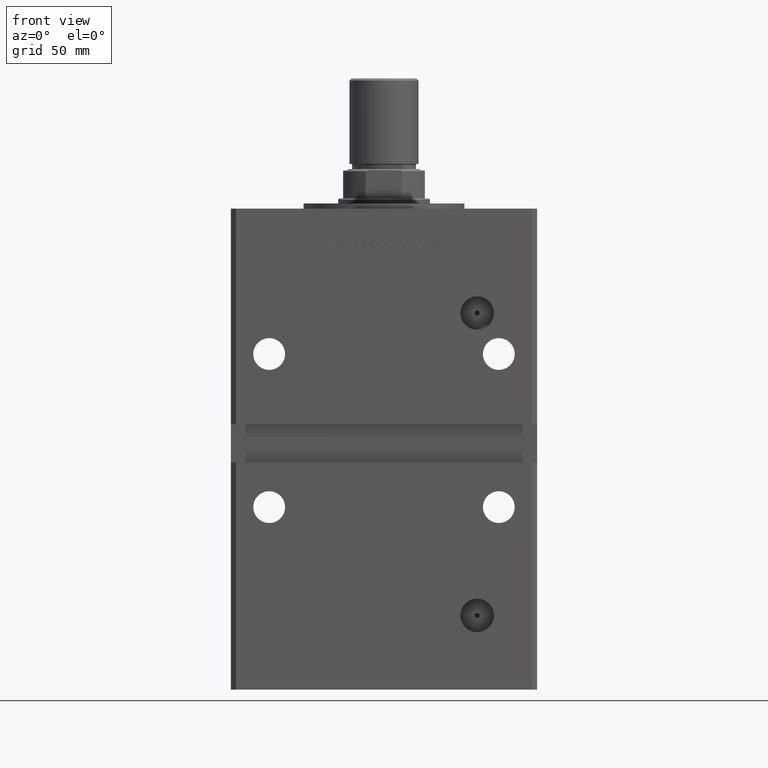
[diagram: clean part render]
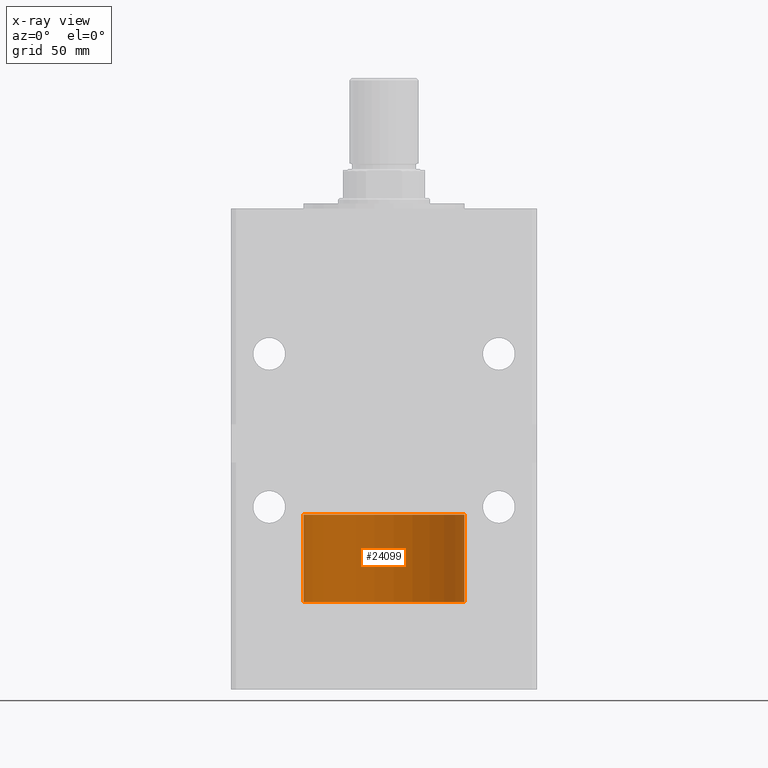
[diagram: x-ray — body ghosted, one internal face saturated and labeled with its STEP entity id]
A machine part, front view, then the same camera in x-ray: the body is ghosted and one INTERNAL B-rep face — a face not visible from any outside direction — is saturated and labeled: STEP entity #24099.
In plain terms, the highlighted cylindrical surface (partial cylindrical patch) has radius 31.5 mm, axis along (-0, -0, -1).
Its self-contained STEP definition (entity closure, byte-faithful):
#867 = VERTEX_POINT ( 'NONE', #34098 ) ;
#1110 = DIRECTION ( 'NONE',  ( -0.000000000000000000, -0.000000000000000000, -1.000000000000000000 ) ) ;
#3923 = CARTESIAN_POINT ( 'NONE',  ( 0.000000000000000000, 0.000000000000000000, 34.25000000000000000 ) ) ;
#4384 = AXIS2_PLACEMENT_3D ( 'NONE', #46930, #39616, #19064 ) ;
#5448 = VECTOR ( 'NONE', #1110, 1000.000000000000000 ) ;
#7257 = EDGE_CURVE ( 'NONE', #15587, #32815, #20708, .T. ) ;
#12291 = AXIS2_PLACEMENT_3D ( 'NONE', #3923, #48560, #28038 ) ;
#12382 = ORIENTED_EDGE ( 'NONE', *, *, #7257, .F. ) ;
#15129 = DIRECTION ( 'NONE',  ( 1.000000000000000000, 0.000000000000000000, 0.000000000000000000 ) ) ;
#15587 = VERTEX_POINT ( 'NONE', #49163 ) ;
#17081 = CARTESIAN_POINT ( 'NONE',  ( 31.50000000000000000, 3.857637417314162689E-15, 34.25000000000000000 ) ) ;
#19064 = DIRECTION ( 'NONE',  ( 1.000000000000000000, 0.000000000000000000, 0.000000000000000000 ) ) ;
#20708 = LINE ( 'NONE', #37215, #24956 ) ;
#22562 = ORIENTED_EDGE ( 'NONE', *, *, #51177, .T. ) ;
#22693 = CARTESIAN_POINT ( 'NONE',  ( 0.000000000000000000, 0.000000000000000000, 0.000000000000000000 ) ) ;
#24099 = ADVANCED_FACE ( 'NONE', ( #32354 ), #27767, .T. ) ;
#24956 = VECTOR ( 'NONE', #33418, 1000.000000000000000 ) ;
#26645 = EDGE_CURVE ( 'NONE', #867, #45069, #29546, .T. ) ;
#27767 = CYLINDRICAL_SURFACE ( 'NONE', #12291, 31.50000000000000000 ) ;
#27913 = ORIENTED_EDGE ( 'NONE', *, *, #26645, .T. ) ;
#28038 = DIRECTION ( 'NONE',  ( -1.000000000000000000, 0.000000000000000000, 0.000000000000000000 ) ) ;
#28593 = CIRCLE ( 'NONE', #34596, 31.50000000000000000 ) ;
#29546 = LINE ( 'NONE', #17081, #5448 ) ;
#30312 = CIRCLE ( 'NONE', #4384, 31.50000000000000000 ) ;
#32354 = FACE_OUTER_BOUND ( 'NONE', #44051, .T. ) ;
#32815 = VERTEX_POINT ( 'NONE', #41215 ) ;
#33418 = DIRECTION ( 'NONE',  ( -0.000000000000000000, -0.000000000000000000, -1.000000000000000000 ) ) ;
#34098 = CARTESIAN_POINT ( 'NONE',  ( 31.50000000000000000, 3.857637417314162689E-15, 34.25000000000000000 ) ) ;
#34596 = AXIS2_PLACEMENT_3D ( 'NONE', #22693, #38931, #15129 ) ;
#36768 = CARTESIAN_POINT ( 'NONE',  ( 31.50000000000000000, 3.857637417314162689E-15, 0.000000000000000000 ) ) ;
#37215 = CARTESIAN_POINT ( 'NONE',  ( -31.50000000000000000, 0.000000000000000000, 34.25000000000000000 ) ) ;
#38931 = DIRECTION ( 'NONE',  ( 0.000000000000000000, 0.000000000000000000, 1.000000000000000000 ) ) ;
#39616 = DIRECTION ( 'NONE',  ( 0.000000000000000000, 0.000000000000000000, 1.000000000000000000 ) ) ;
#41215 = CARTESIAN_POINT ( 'NONE',  ( -31.50000000000000000, 0.000000000000000000, 0.000000000000000000 ) ) ;
#44051 = EDGE_LOOP ( 'NONE', ( #46960, #27913, #22562, #12382 ) ) ;
#45069 = VERTEX_POINT ( 'NONE', #36768 ) ;
#46930 = CARTESIAN_POINT ( 'NONE',  ( 0.000000000000000000, 0.000000000000000000, 34.25000000000000000 ) ) ;
#46960 = ORIENTED_EDGE ( 'NONE', *, *, #52455, .F. ) ;
#48560 = DIRECTION ( 'NONE',  ( -0.000000000000000000, -0.000000000000000000, -1.000000000000000000 ) ) ;
#49163 = CARTESIAN_POINT ( 'NONE',  ( -31.50000000000000000, 0.000000000000000000, 34.25000000000000000 ) ) ;
#51177 = EDGE_CURVE ( 'NONE', #45069, #32815, #28593, .T. ) ;
#52455 = EDGE_CURVE ( 'NONE', #867, #15587, #30312, .T. ) ;